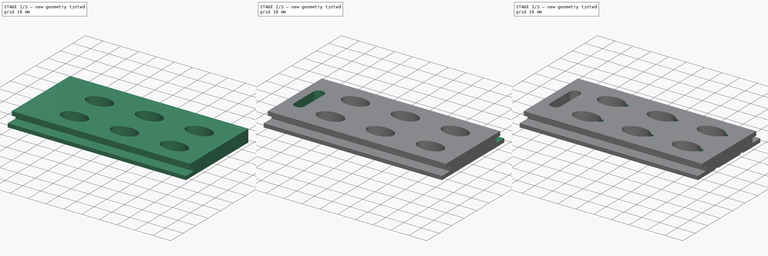
[diagram: build sequence overview — one tinted view per stage of 3, left to right]
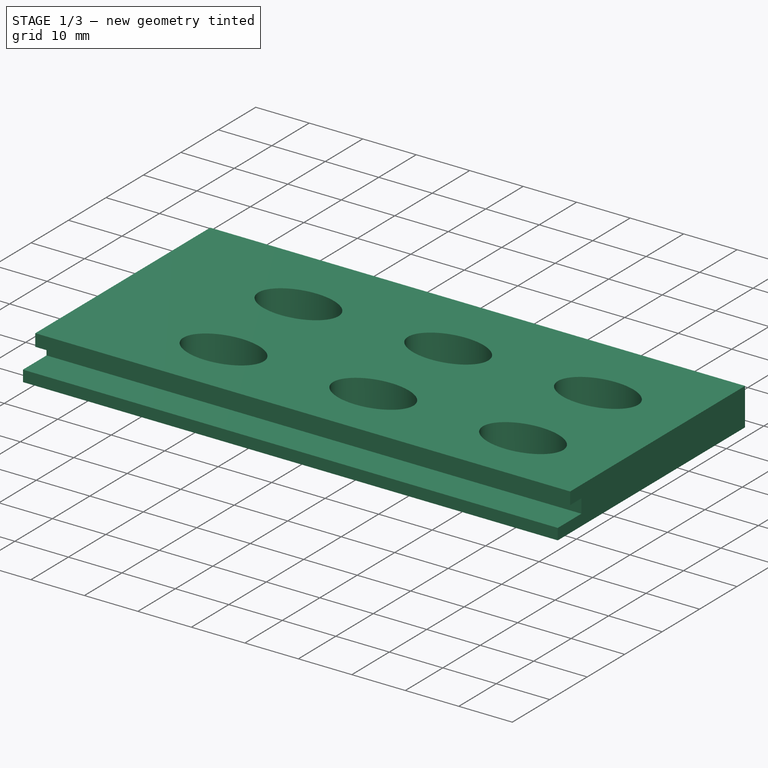
[diagram: stage 1 of 3 — iso view after this stage's code; geometry added in this stage tinted green]
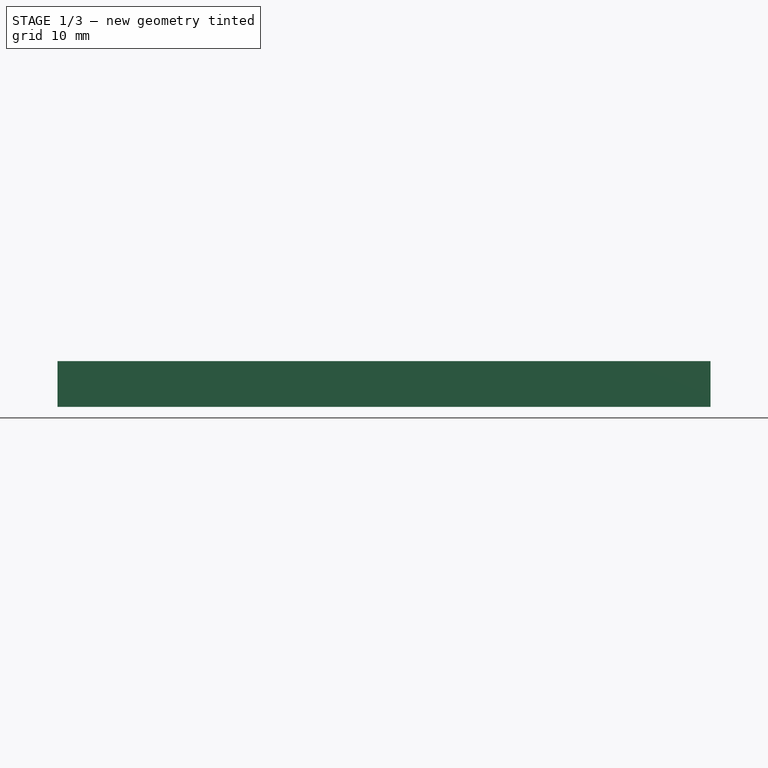
[diagram: stage 1 of 3 — front view after this stage's code; geometry added in this stage tinted green]
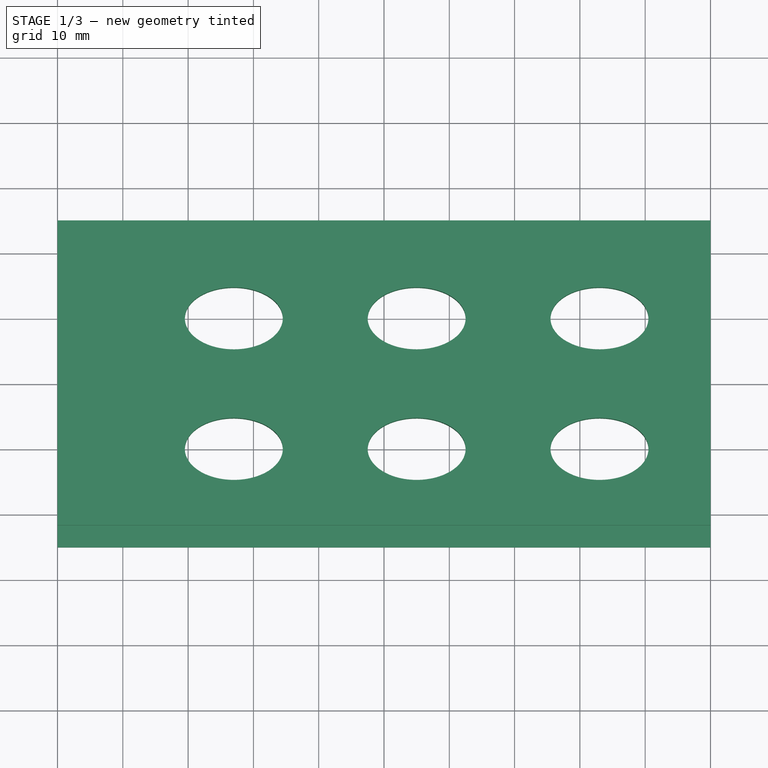
[diagram: stage 1 of 3 — top view after this stage's code; geometry added in this stage tinted green]
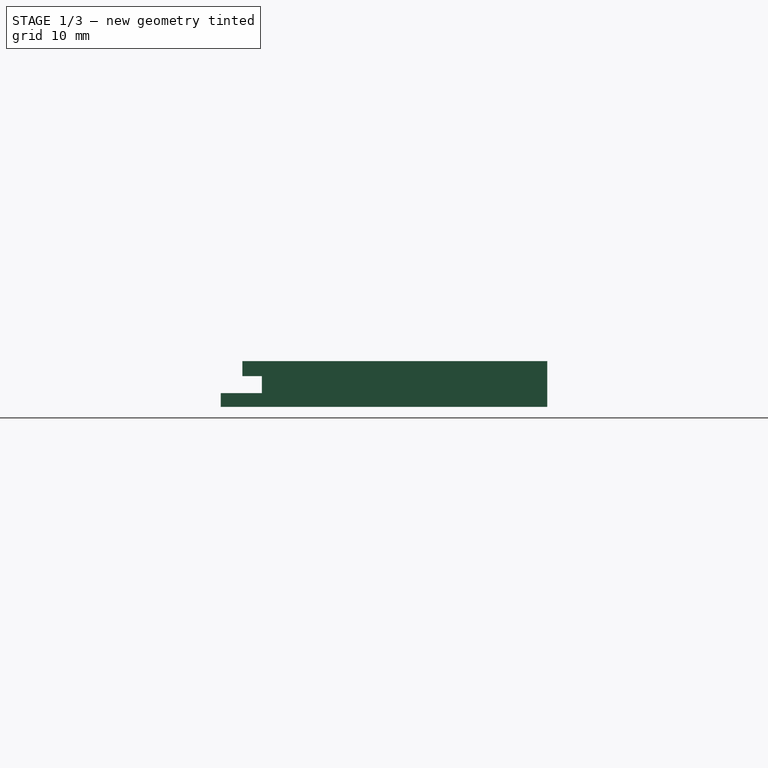
[diagram: stage 1 of 3 — right view after this stage's code; geometry added in this stage tinted green]
FCSTD DOCUMENT  (FreeCAD 0.21R33668 +26 (Git))
Label: bushing_jig_bottom2
License: All rights reserved
LicenseURL: https://en.wikipedia.org/wiki/All_rights_reserved
objects: Sketcher::SketchObject×5, PartDesign::Pocket×4, PartDesign::LinearPattern×2, PartDesign::Pad×1, PartDesign::Mirrored×1, PartDesign::Plane×1, PartDesign::Body×1
note: 20 computed .brp shape members not serialized (recipe doc carries the construction recipe); baked Part::Feature solids carry a one-line shape summary decoded from their .brp

FEATURE [Sketcher::SketchObject] Sketch
  FullyConstrained = true
  MapMode = 5
  Support = -> [XY_Plane]
  sketch-geometry (5):
    g0: LineSegment StartX=-50 StartY=-25 StartZ=0 EndX=-50 EndY=25 EndZ=0
    g1: LineSegment StartX=-50 StartY=25 StartZ=0 EndX=50 EndY=25 EndZ=0
    g2: LineSegment StartX=50 StartY=25 StartZ=0 EndX=50 EndY=-25 EndZ=0
    g3: LineSegment StartX=50 StartY=-25 StartZ=0 EndX=-50 EndY=-25 EndZ=0
    g4: GeomPoint X=0 Y=0 Z=0
  constraints (12):
    c: Coincident(g0,g1)
    c: Coincident(g1,g2)
    c: Coincident(g2,g3)
    c: Coincident(g3,g0)
    c: Horizontal(g1)
    c: Horizontal(g3)
    c: Vertical(g0)
    c: Vertical(g2)
    c: Symmetric(g1,g0,g4)
    c: Coincident(g4,g-1)
    c: DistanceX(g1,g1) = 100
    c: DistanceY(g2,g2) = 50
FEATURE [PartDesign::Pad] Pad
  Direction = (0,0,1)
  Length = 7
  Length2 = 10
  Profile = -> Sketch
  ReferenceAxis = -> Sketch [N_Axis]
  Reversed = true
  Type = 0
FEATURE [Sketcher::SketchObject] Sketch001
  FullyConstrained = true
  MapMode = 5
  Support = -> [XY_Plane]
  sketch-geometry (36):
    g0: Ellipse CenterX=-23 CenterY=10 CenterZ=0 NormalX=0 NormalY=0 NormalZ=1 MajorRadius=7.5 MinorRadius=4.75 AngleXU=-3e-16
    g1: LineSegment StartX=-15.5 StartY=10 StartZ=0 EndX=-30.5 EndY=10 EndZ=0
    g2: LineSegment StartX=-23 StartY=14.75 StartZ=0 EndX=-23 EndY=5.25 EndZ=0
    g3: GeomPoint X=-17.1959 Y=10 Z=0
    g4: GeomPoint X=-28.8041 Y=10 Z=0
    g5: Ellipse CenterX=5 CenterY=10 CenterZ=0 NormalX=0 NormalY=0 NormalZ=1 MajorRadius=7.5 MinorRadius=4.75 AngleXU=-3e-16
    g6: LineSegment StartX=12.5 StartY=10 StartZ=0 EndX=-2.5 EndY=10 EndZ=0
    g7: LineSegment StartX=5 StartY=14.75 StartZ=0 EndX=5 EndY=5.25 EndZ=0
    g8: GeomPoint X=10.8041 Y=10 Z=0
    g9: GeomPoint X=-0.804093 Y=10 Z=0
    g10: LineSegment StartX=-23 StartY=10 StartZ=0 EndX=5 EndY=10 EndZ=0
    g11: Ellipse CenterX=33 CenterY=10 CenterZ=0 NormalX=0 NormalY=0 NormalZ=1 MajorRadius=7.5 MinorRadius=4.75 AngleXU=0
    g12: LineSegment StartX=40.5 StartY=10 StartZ=0 EndX=25.5 EndY=10 EndZ=0
    g13: LineSegment StartX=33 StartY=14.75 StartZ=0 EndX=33 EndY=5.25 EndZ=0
    g14: GeomPoint X=38.8041 Y=10 Z=0
    g15: GeomPoint X=27.1959 Y=10 Z=0
    g16: LineSegment StartX=5 StartY=10 StartZ=0 EndX=33 EndY=10 EndZ=0
    g17: Ellipse CenterX=-23 CenterY=-10 CenterZ=0 NormalX=0 NormalY=0 NormalZ=1 MajorRadius=7.5 MinorRadius=4.75 AngleXU=0
    g18: LineSegment StartX=-15.5 StartY=-10 StartZ=0 EndX=-30.5 EndY=-10 EndZ=0
    g19: LineSegment StartX=-23 StartY=-5.25 StartZ=0 EndX=-23 EndY=-14.75 EndZ=0
    g20: GeomPoint X=-17.1959 Y=-10 Z=0
    g21: GeomPoint X=-28.8041 Y=-10 Z=0
    g22: LineSegment StartX=-23 StartY=10 StartZ=0 EndX=-23 EndY=-10 EndZ=0
    g23: Ellipse CenterX=5 CenterY=-10 CenterZ=0 NormalX=0 NormalY=0 NormalZ=1 MajorRadius=7.5 MinorRadius=4.75 AngleXU=0
    g24: LineSegment StartX=12.5 StartY=-10 StartZ=0 EndX=-2.5 EndY=-10 EndZ=0
    g25: LineSegment StartX=5 StartY=-5.25 StartZ=0 EndX=5 EndY=-14.75 EndZ=0
    g26: GeomPoint X=10.8041 Y=-10 Z=0
    g27: GeomPoint X=-0.804093 Y=-10 Z=0
    g28: LineSegment StartX=-23 StartY=-10 StartZ=0 EndX=5 EndY=-10 EndZ=0
    g29: Ellipse CenterX=33 CenterY=-10 CenterZ=0 NormalX=0 NormalY=0 NormalZ=1 MajorRadius=7.5 MinorRadius=4.75 AngleXU=0
    g30: LineSegment StartX=40.5 StartY=-10 StartZ=0 EndX=25.5 EndY=-10 EndZ=0
    g31: LineSegment StartX=33 StartY=-5.25 StartZ=0 EndX=33 EndY=-14.75 EndZ=0
    g32: GeomPoint X=38.8041 Y=-10 Z=0
    g33: GeomPoint X=27.1959 Y=-10 Z=0
    g34: LineSegment StartX=5 StartY=-10 StartZ=0 EndX=33 EndY=-10 EndZ=0
    g35: GeomPoint X=5 Y=0 Z=0
  constraints (47):
    c: InternalAlignment(g1-g4 -> g0) x4
    c: Horizontal(g1)
    c: DistanceY(g2,g2) = 9.5
    c: DistanceX(g1,g1) = 15
    c: InternalAlignment(g6-g9 -> g5) x4
    c: Horizontal(g6)
    c: Equal(g2,g7) = 9.5
    c: Equal(g1,g6) = 13
    c: Coincident(g0,g10)
    c: Coincident(g5,g10)
    c: Distance(g10) = 28
    c: Angle(g10) = 0
    c: InternalAlignment(g12-g15 -> g11) x4
    c: Horizontal(g12)
    c: Equal(g2,g13) = 9.5
    c: Equal(g1,g12) = 13
    c: Coincident(g5,g16)
    c: Coincident(g11,g16)
    c: Equal(g10,g16)
    c: Parallel(g16,g10)
    c: InternalAlignment(g18-g21 -> g17) x4
    c: Horizontal(g18)
    c: Equal(g2,g19) = 9.5
    c: Equal(g1,g18) = 13
    c: Coincident(g0,g22)
    c: Coincident(g17,g22)
    c: Distance(g22) = 20
    c: Perpendicular(g22,g10)
    c: InternalAlignment(g24-g27 -> g23) x4
    c: Horizontal(g24)
    c: Equal(g2,g25) = 9.5
    c: Equal(g1,g24) = 13
    c: Coincident(g17,g28)
    c: Coincident(g23,g28)
    c: Equal(g10,g28)
    c: Parallel(g28,g10)
    c: InternalAlignment(g30-g33 -> g29) x4
    c: Horizontal(g30)
    c: Equal(g2,g31) = 9.5
    c: Equal(g1,g30) = 13
    c: Coincident(g23,g34)
    c: Coincident(g29,g34)
    c: Equal(g10,g34)
    c: Parallel(g34,g10)
    c: PointOnObject(g35,g-1)
    c: Symmetric(g5,g23,g35)
    c: DistanceX(g-1,g5) = 5
FEATURE [PartDesign::Pocket] Pocket
  BaseFeature = -> Pad
  Direction = (0,0,-1)
  Length = 21
  Length2 = 5
  Profile = -> Sketch001
  ReferenceAxis = -> Sketch001 [N_Axis]
  Type = 0
FEATURE [Sketcher::SketchObject] Sketch003
  FullyConstrained = true
  MapMode = 5
  Placement = pos=(0,0,0) rot=(0.57735,0.57735,0.57735;2.0944rad)
  Support = -> [YZ_Plane]
  sketch-geometry (6):
    g0: LineSegment StartX=-25 StartY=0 StartZ=0 EndX=-25 EndY=-4.9 EndZ=0
    g1: LineSegment StartX=-25 StartY=-4.9 StartZ=0 EndX=-18.7 EndY=-4.9 EndZ=0
    g2: LineSegment StartX=-18.7 StartY=-4.9 StartZ=0 EndX=-18.7 EndY=-2.3 EndZ=0
    g3: LineSegment StartX=-18.7 StartY=-2.3 StartZ=0 EndX=-21.7 EndY=-2.3 EndZ=0
    g4: LineSegment StartX=-21.7 StartY=-2.3 StartZ=0 EndX=-21.7 EndY=0 EndZ=0
    g5: LineSegment StartX=-21.7 StartY=0 StartZ=0 EndX=-25 EndY=0 EndZ=0
  constraints (18):
    c: PointOnObject(g0,g-1)
    c: Vertical(g0)
    c: Coincident(g2,g1)
    c: Horizontal(g3)
    c: PointOnObject(g4,g-1)
    c: Vertical(g4)
    c: Coincident(g5,g0)
    c: Horizontal(g1)
    c: Vertical(g2)
    c: Coincident(g2,g3)
    c: Coincident(g1,g0)
    c: DistanceX(g5,g5) = 3.3
    c: Coincident(g5,g4)
    c: Coincident(g3,g4)
    c: DistanceY(g2,g2) = 2.6
    c: DistanceX(g0,g-1) = 25
    c: DistanceX(g1,g1) = 6.3
    c: DistanceY(g4,g4) = 2.3
FEATURE [PartDesign::Pocket] Pocket001
  BaseFeature = -> Pocket
  Direction = (-1,2e-16,-3e-16)
  Length = 5
  Length2 = 5
  Midplane = true
  Profile = -> Sketch003
  ReferenceAxis = -> Sketch003 [N_Axis]
  Type = 1
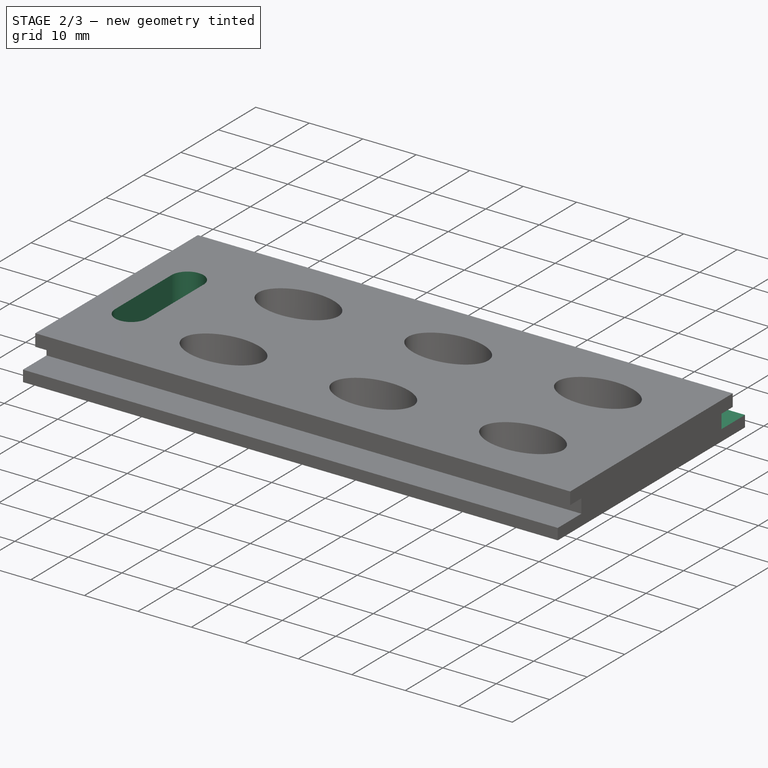
[diagram: stage 2 of 3 — iso view after this stage's code; geometry added in this stage tinted green]
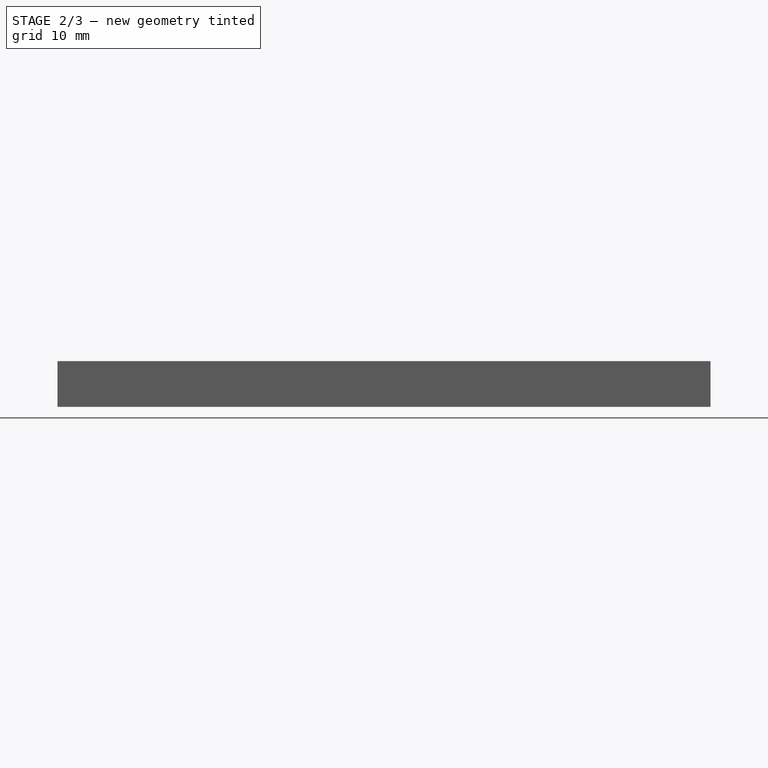
[diagram: stage 2 of 3 — front view after this stage's code; geometry added in this stage tinted green]
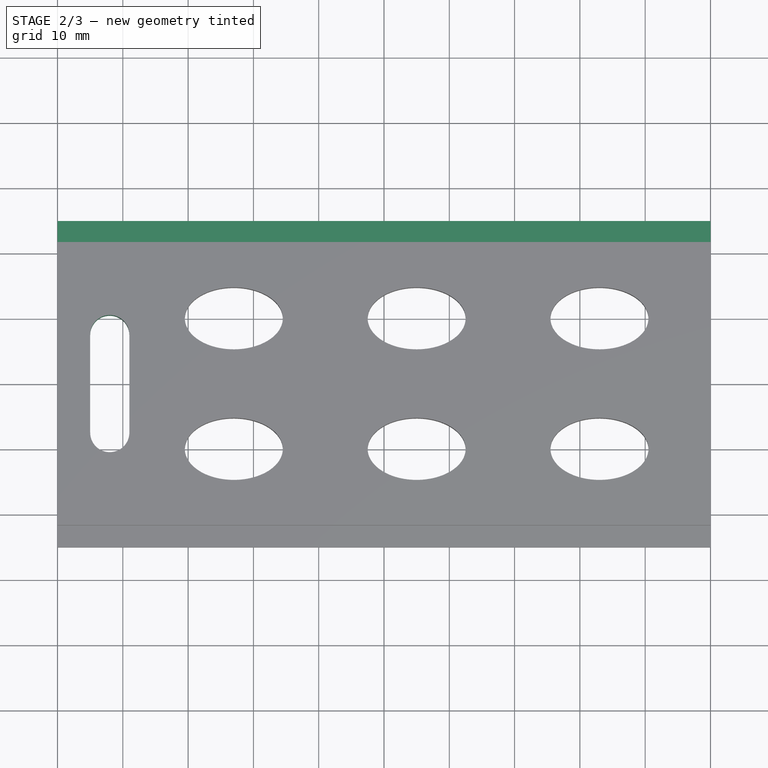
[diagram: stage 2 of 3 — top view after this stage's code; geometry added in this stage tinted green]
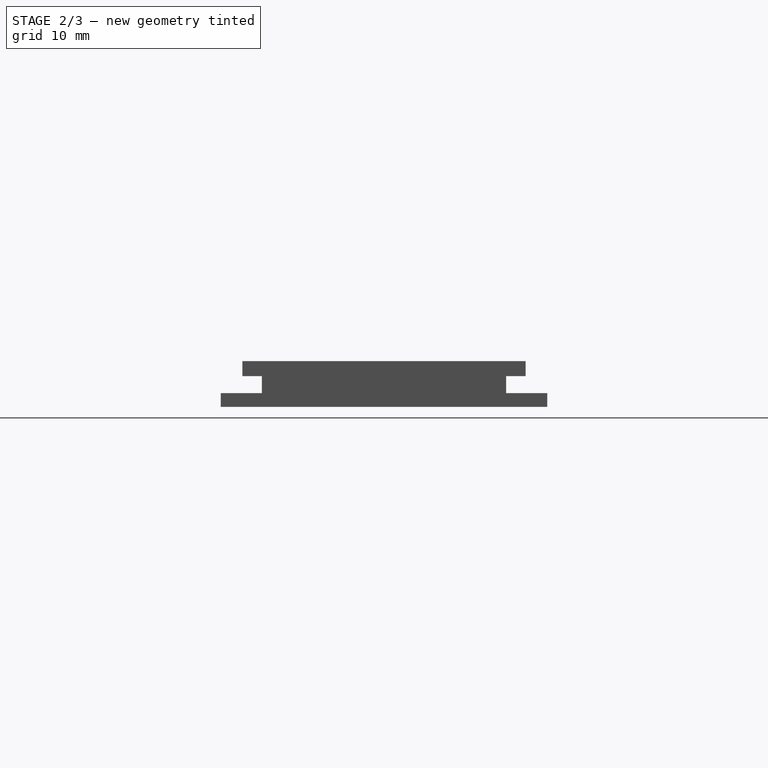
[diagram: stage 2 of 3 — right view after this stage's code; geometry added in this stage tinted green]
FEATURE [PartDesign::Mirrored] Mirrored
  BaseFeature = -> Pocket001
  MirrorPlane = -> Sketch003 [V_Axis]
  Originals = -> [Pocket001]
FEATURE [Sketcher::SketchObject] Sketch004
  FullyConstrained = true
  MapMode = 5
  Support = -> [XY_Plane]
  sketch-geometry (5):
    g0: ArcOfCircle CenterX=-42 CenterY=7.5 CenterZ=0 NormalX=0 NormalY=0 NormalZ=1 AngleXU=0 Radius=3 StartAngle=0 EndAngle=3.14159
    g1: ArcOfCircle CenterX=-42 CenterY=-7.5 CenterZ=0 NormalX=0 NormalY=0 NormalZ=1 AngleXU=0 Radius=3 StartAngle=3.14159 EndAngle=6.28319
    g2: LineSegment StartX=-45 StartY=7.5 StartZ=0 EndX=-45 EndY=-7.5 EndZ=0
    g3: LineSegment StartX=-39 StartY=-7.5 StartZ=0 EndX=-39 EndY=7.5 EndZ=0
    g4: GeomPoint X=-42 Y=0 Z=0
  constraints (11):
    c: Tangent(g0,g2) = -1.5708
    c: Tangent(g2,g1) = -1.5708
    c: Tangent(g1,g3) = -1.5708
    c: Tangent(g3,g0) = -1.5708
    c: Equal(g0,g1)
    c: Vertical(g2)
    c: DistanceY(g1,g0) = 15
    c: Radius(g1) = 3
    c: DistanceX(g1,g-1) = 42
    c: PointOnObject(g4,g-1)
    c: Symmetric(g0,g1,g4)
FEATURE [PartDesign::Pocket] Pocket002
  BaseFeature = -> Mirrored
  Direction = (0,0,-1)
  Length = 5
  Length2 = 5
  Profile = -> Sketch004
  ReferenceAxis = -> Sketch004 [N_Axis]
  Type = 1
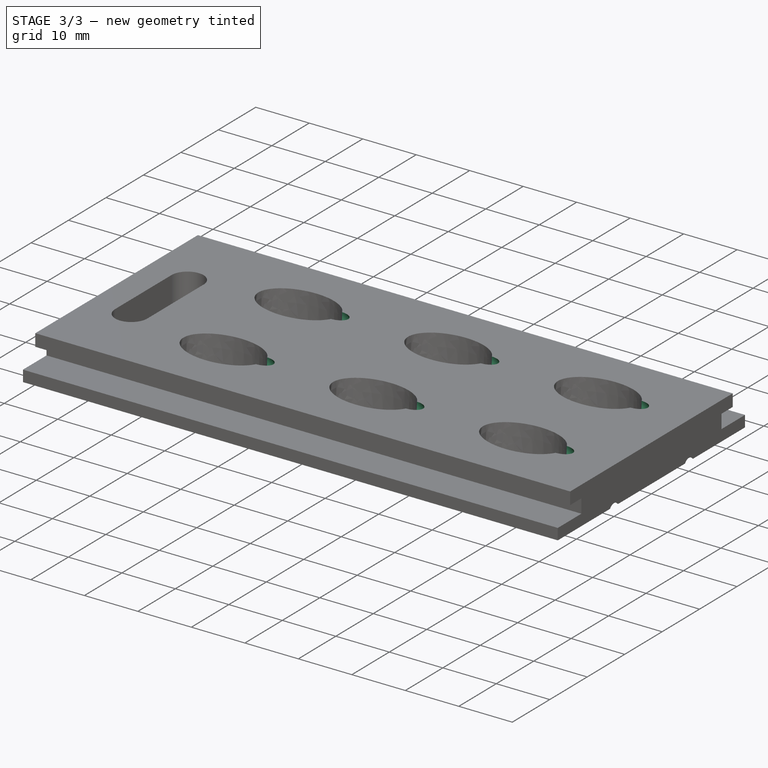
[diagram: stage 3 of 3 — iso view after this stage's code; geometry added in this stage tinted green]
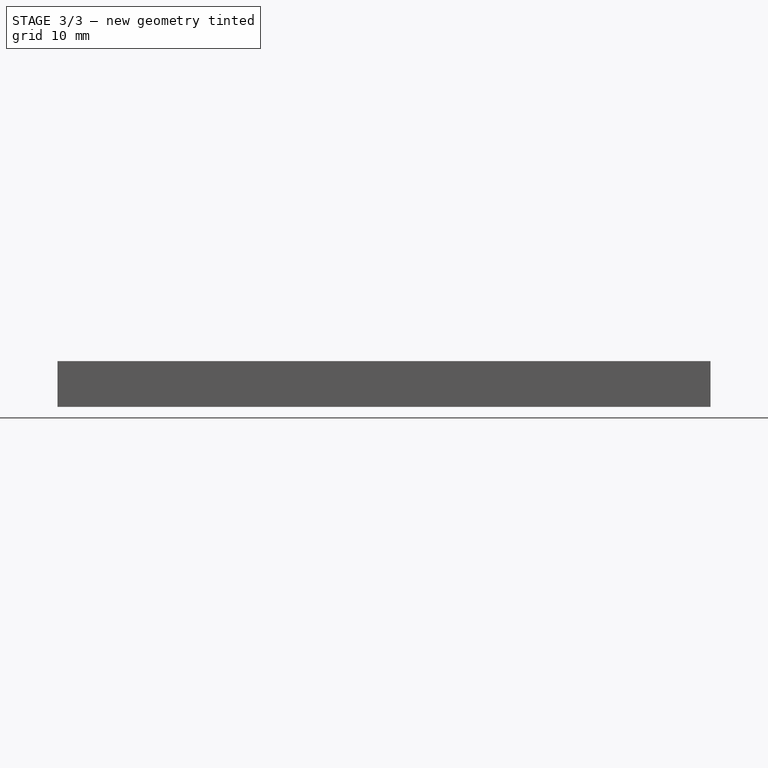
[diagram: stage 3 of 3 — front view after this stage's code; geometry added in this stage tinted green]
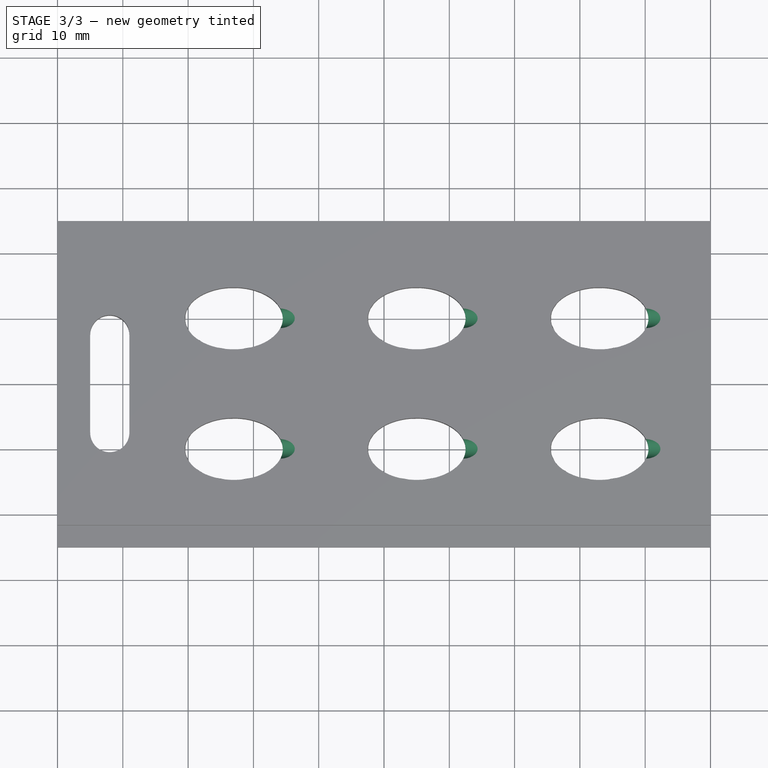
[diagram: stage 3 of 3 — top view after this stage's code; geometry added in this stage tinted green]
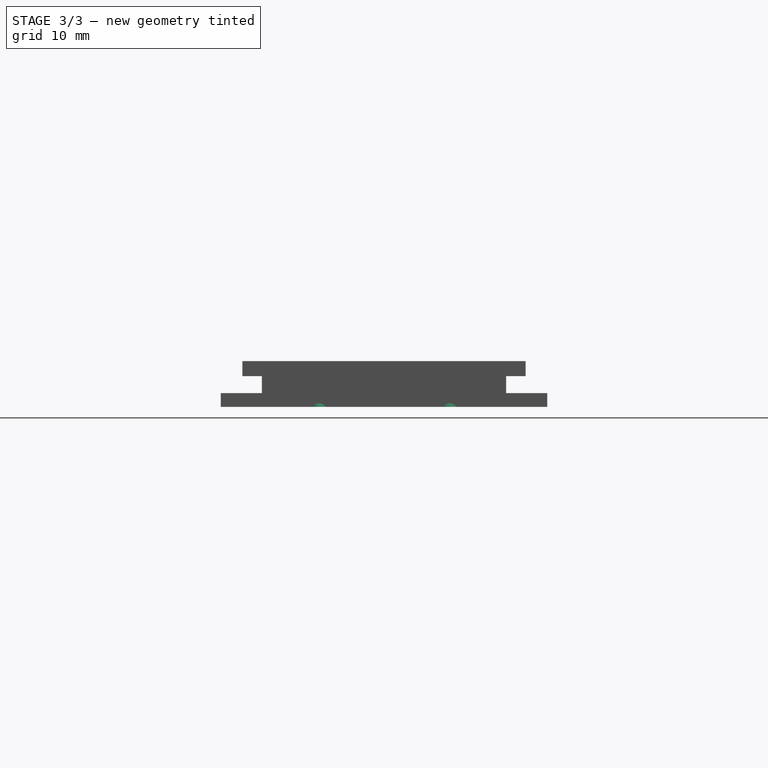
[diagram: stage 3 of 3 — right view after this stage's code; geometry added in this stage tinted green]
FEATURE [PartDesign::Plane] DatumPlane
  AttachmentOffset = pos=(0,0,-16) rot=(1,0,0;0.698132rad)
  Length = 61.8694
  MapMode = 5
  Placement = pos=(-16,3.6e-15,-3.6e-15) rot=(0.671543,0.671543,0.313146;2.53465rad)
  ResizeMode = 0
  Support = -> [YZ_Plane]
  Width = 82.311
FEATURE [Sketcher::SketchObject] Sketch005
  FullyConstrained = true
  MapMode = 5
  Placement = pos=(-16,3.6e-15,-5.3e-15) rot=(0.671543,0.671543,0.313146;2.53465rad)
  Support = -> [DatumPlane]
  sketch-geometry (2):
    g0: Circle CenterX=-10 CenterY=0 CenterZ=0 NormalX=0 NormalY=0 NormalZ=1 AngleXU=0 Radius=1.5
    g1: Circle CenterX=10 CenterY=0 CenterZ=0 NormalX=0 NormalY=0 NormalZ=1 AngleXU=0 Radius=1.5
  constraints (6):
    c: PointOnObject(g0,g-1)
    c: DistanceX(g0,g-1) = 10
    c: Diameter(g0) = 3
    c: PointOnObject(g1,g-1)
    c: Equal(g1,g0)
    c: DistanceX(g-1,g1) = 10
FEATURE [PartDesign::Pocket] Pocket003
  BaseFeature = -> Pocket002
  Direction = (-0.766044,2e-16,0.642788)
  Length = 18
  Length2 = 5
  Profile = -> Sketch005
  ReferenceAxis = -> Sketch005 [N_Axis]
  Reversed = true
  Type = 0
FEATURE [PartDesign::LinearPattern] LinearPattern
  BaseFeature = -> Pocket003
  Direction = -> Pocket003 [Edge21]
  Length = 28
  Occurrences = 2
  Originals = -> [Pocket003]
  Reversed = true
FEATURE [PartDesign::LinearPattern] LinearPattern001
  BaseFeature = -> LinearPattern
  Direction = -> LinearPattern [Edge21]
  Length = 56
  Occurrences = 2
  Originals = -> [Pocket003]
  Reversed = true
FEATURE [PartDesign::Body] Body
  Group = -> [Sketch,Pad,Sketch001,Pocket,Sketch003,Pocket001,Mirrored,Sketch004,Pocket002,DatumPlane,Sketch005,Pocket003,LinearPattern,LinearPattern001]
  Origin = -> Origin
  Tip = -> LinearPattern001
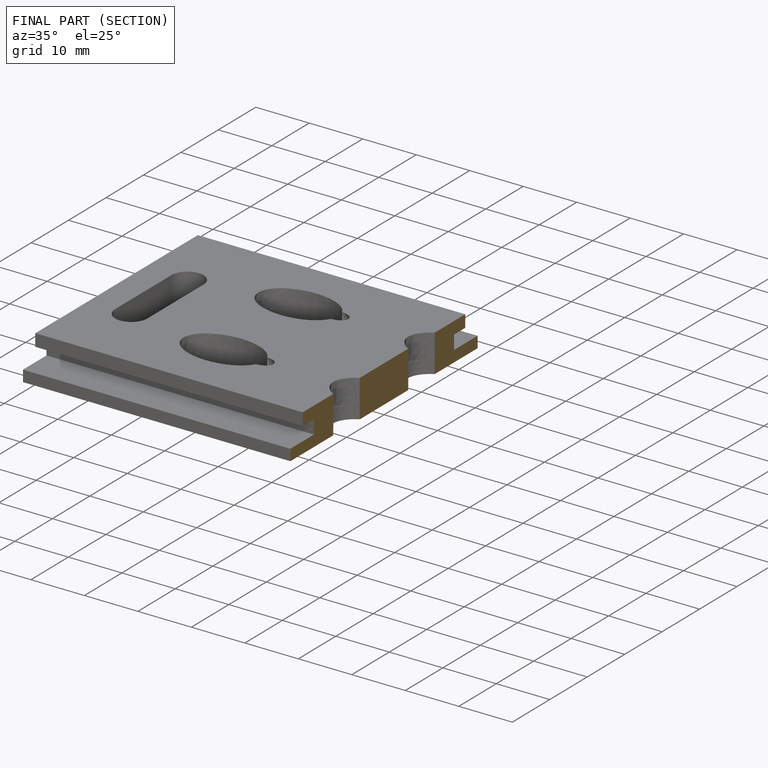
[diagram: finished part — half-section view (interior)]
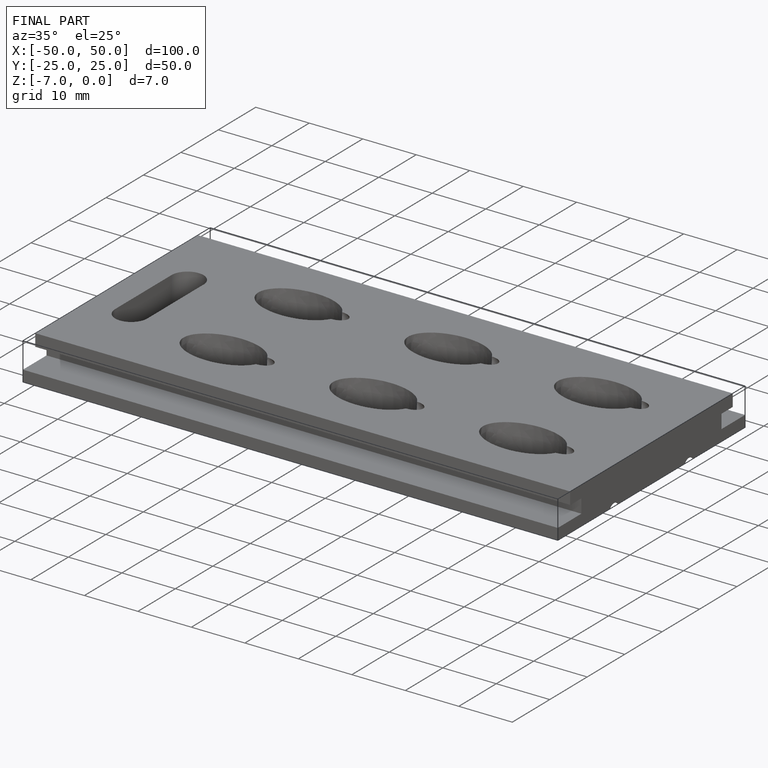
[diagram: finished part — iso view with bounding-box wireframe]
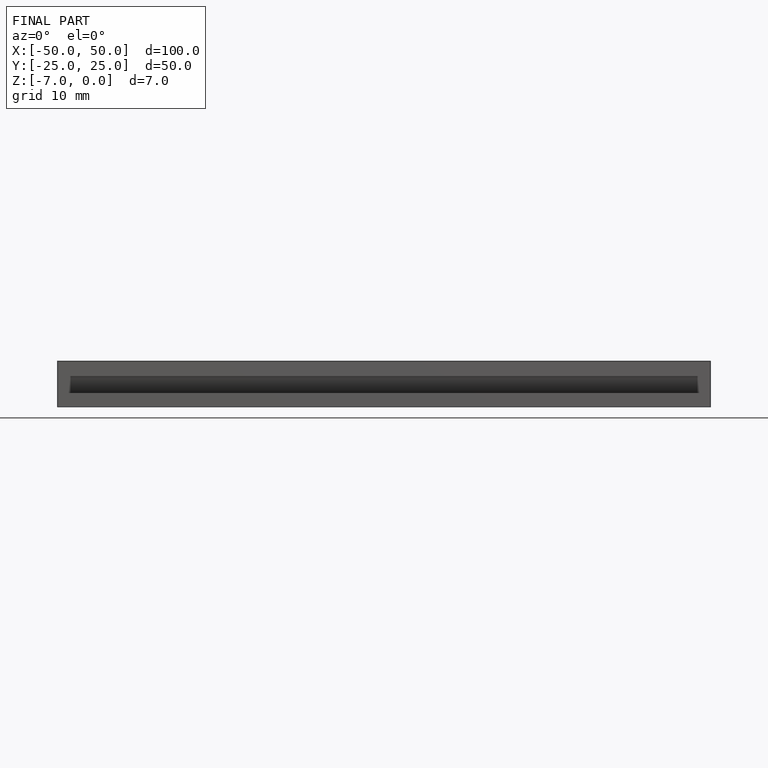
[diagram: finished part — front view with bounding-box wireframe]
